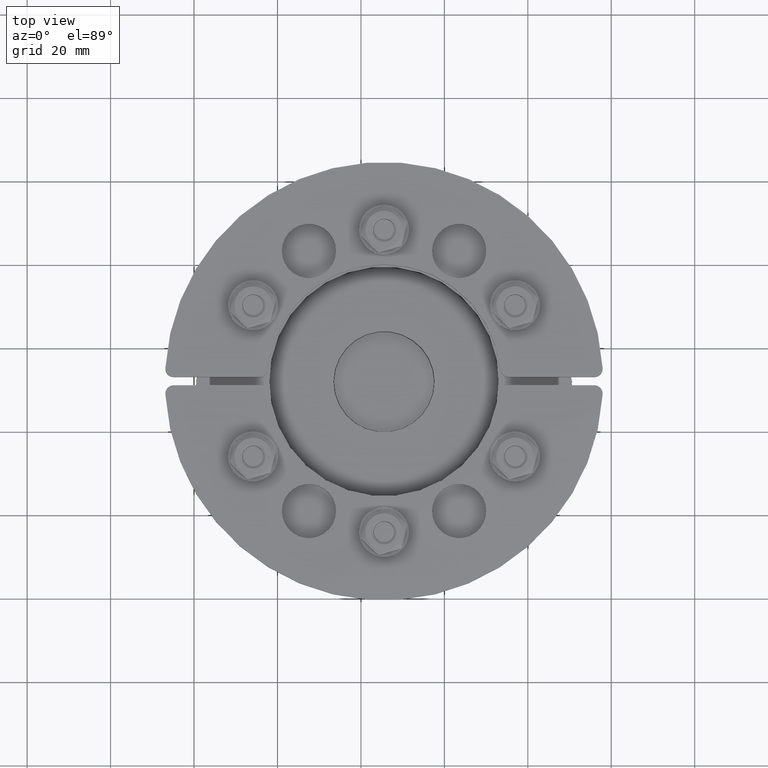
[diagram: clean part render]
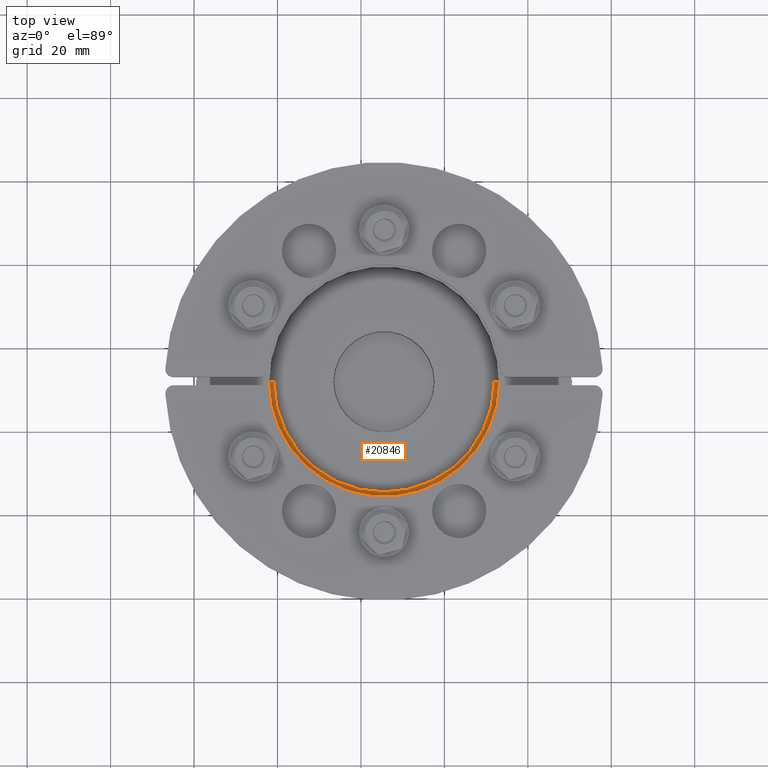
[diagram: same view with one face highlighted and labeled with its STEP entity id]
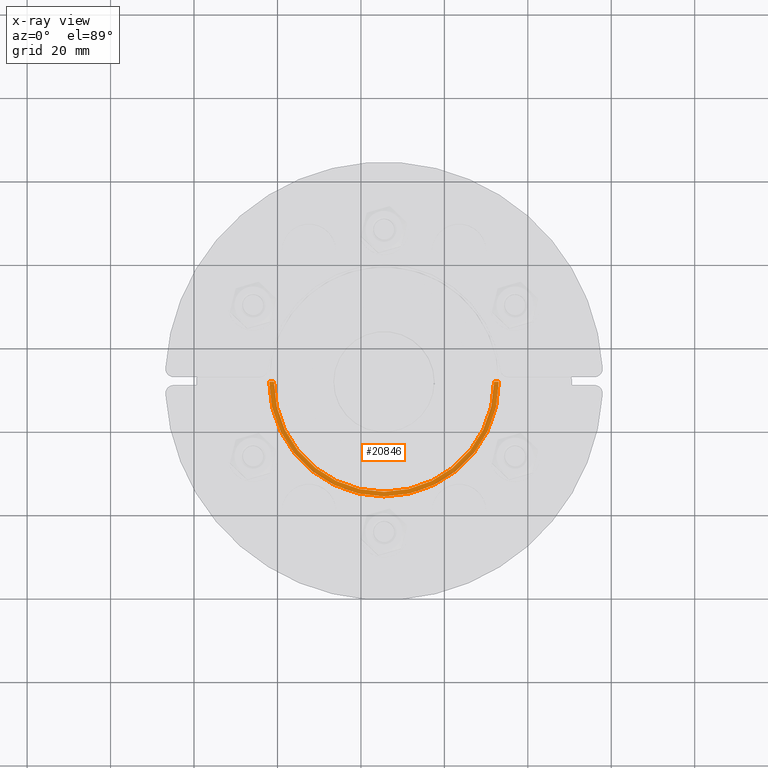
[diagram: x-ray of the same camera — body ghosted, the highlighted face saturated]
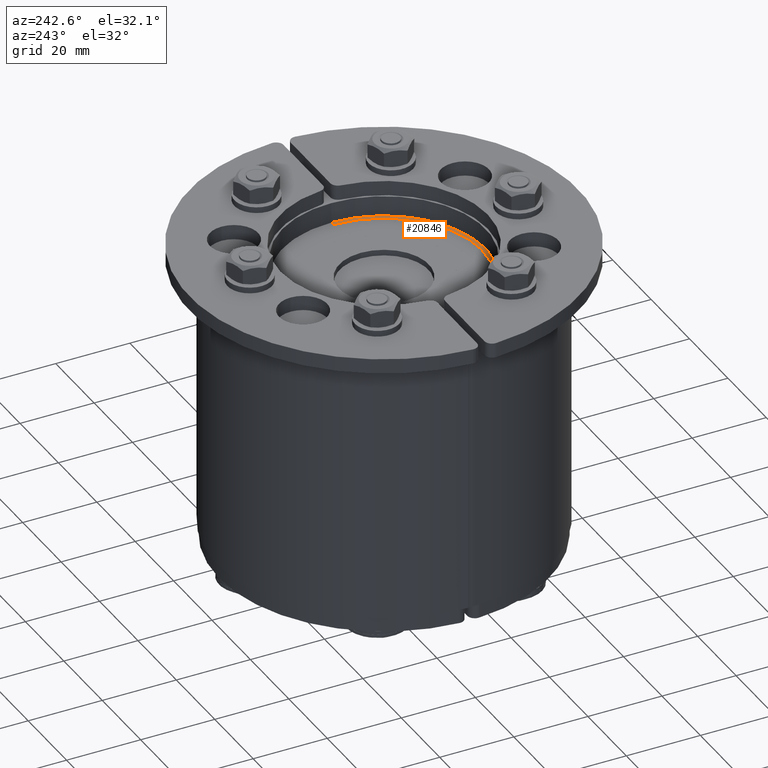
[diagram: same view with one face highlighted and labeled with its STEP entity id]
A machine part, top view. The second image highlights one B-rep face of the part: STEP entity #20846.
The next image is the same camera in x-ray: the body ghosted, the highlighted face saturated — about 0% of this face is hidden behind the body in this view.
A second angle (auxiliary view) of the same face is appended — the face is thin or edge-on in the first view.
In plain terms, the highlighted planar face has unit normal (-0, 0, -1).
Its self-contained STEP definition (entity closure, byte-faithful):
#20700=CARTESIAN_POINT('',(27.5,0.0,0.0));
#20701=VERTEX_POINT('',#20700);
#20702=CARTESIAN_POINT('',(-27.5,0.0,0.0));
#20703=VERTEX_POINT('',#20702);
#20704=CARTESIAN_POINT('',(0.0,0.0,0.0));
#20705=DIRECTION('',(0.0,0.0,1.0));
#20706=DIRECTION('',(1.0,0.0,0.0));
#20707=AXIS2_PLACEMENT_3D('',#20704,#20705,#20706);
#20708=CIRCLE('',#20707,27.5);
#20709=EDGE_CURVE('',#20701,#20703,#20708,.T.);
#20742=CARTESIAN_POINT('',(26.400000000000002,0.0,0.0));
#20743=VERTEX_POINT('',#20742);
#20744=CARTESIAN_POINT('',(26.400000000000002,0.0,0.0));
#20745=DIRECTION('',(1.0,0.0,0.0));
#20746=VECTOR('',#20745,1.099999999999998);
#20747=LINE('',#20744,#20746);
#20748=EDGE_CURVE('',#20743,#20701,#20747,.T.);
#20773=CARTESIAN_POINT('',(-26.400000000000002,0.0,0.0));
#20774=VERTEX_POINT('',#20773);
#20775=CARTESIAN_POINT('',(0.0,0.0,0.0));
#20776=DIRECTION('',(0.0,0.0,-1.0));
#20777=DIRECTION('',(-1.0,0.0,0.0));
#20778=AXIS2_PLACEMENT_3D('',#20775,#20776,#20777);
#20779=CIRCLE('',#20778,26.400000000000002);
#20780=EDGE_CURVE('',#20774,#20743,#20779,.T.);
#20806=CARTESIAN_POINT('',(-27.5,0.0,0.0));
#20807=DIRECTION('',(1.0,0.0,0.0));
#20808=VECTOR('',#20807,1.099999999999998);
#20809=LINE('',#20806,#20808);
#20810=EDGE_CURVE('',#20703,#20774,#20809,.T.);
#20835=CARTESIAN_POINT('',(5.380376E-016,16.871918949539751,0.0));
#20836=DIRECTION('',(0.0,0.0,1.0));
#20837=DIRECTION('',(1.0,0.0,0.0));
#20838=AXIS2_PLACEMENT_3D('',#20835,#20836,#20837);
#20839=PLANE('',#20838);
#20840=ORIENTED_EDGE('',*,*,#20810,.F.);
#20841=ORIENTED_EDGE('',*,*,#20709,.F.);
#20842=ORIENTED_EDGE('',*,*,#20748,.F.);
#20843=ORIENTED_EDGE('',*,*,#20780,.F.);
#20844=EDGE_LOOP('',(#20840,#20841,#20842,#20843));
#20845=FACE_OUTER_BOUND('',#20844,.T.);
#20846=ADVANCED_FACE('',(#20845),#20839,.F.);